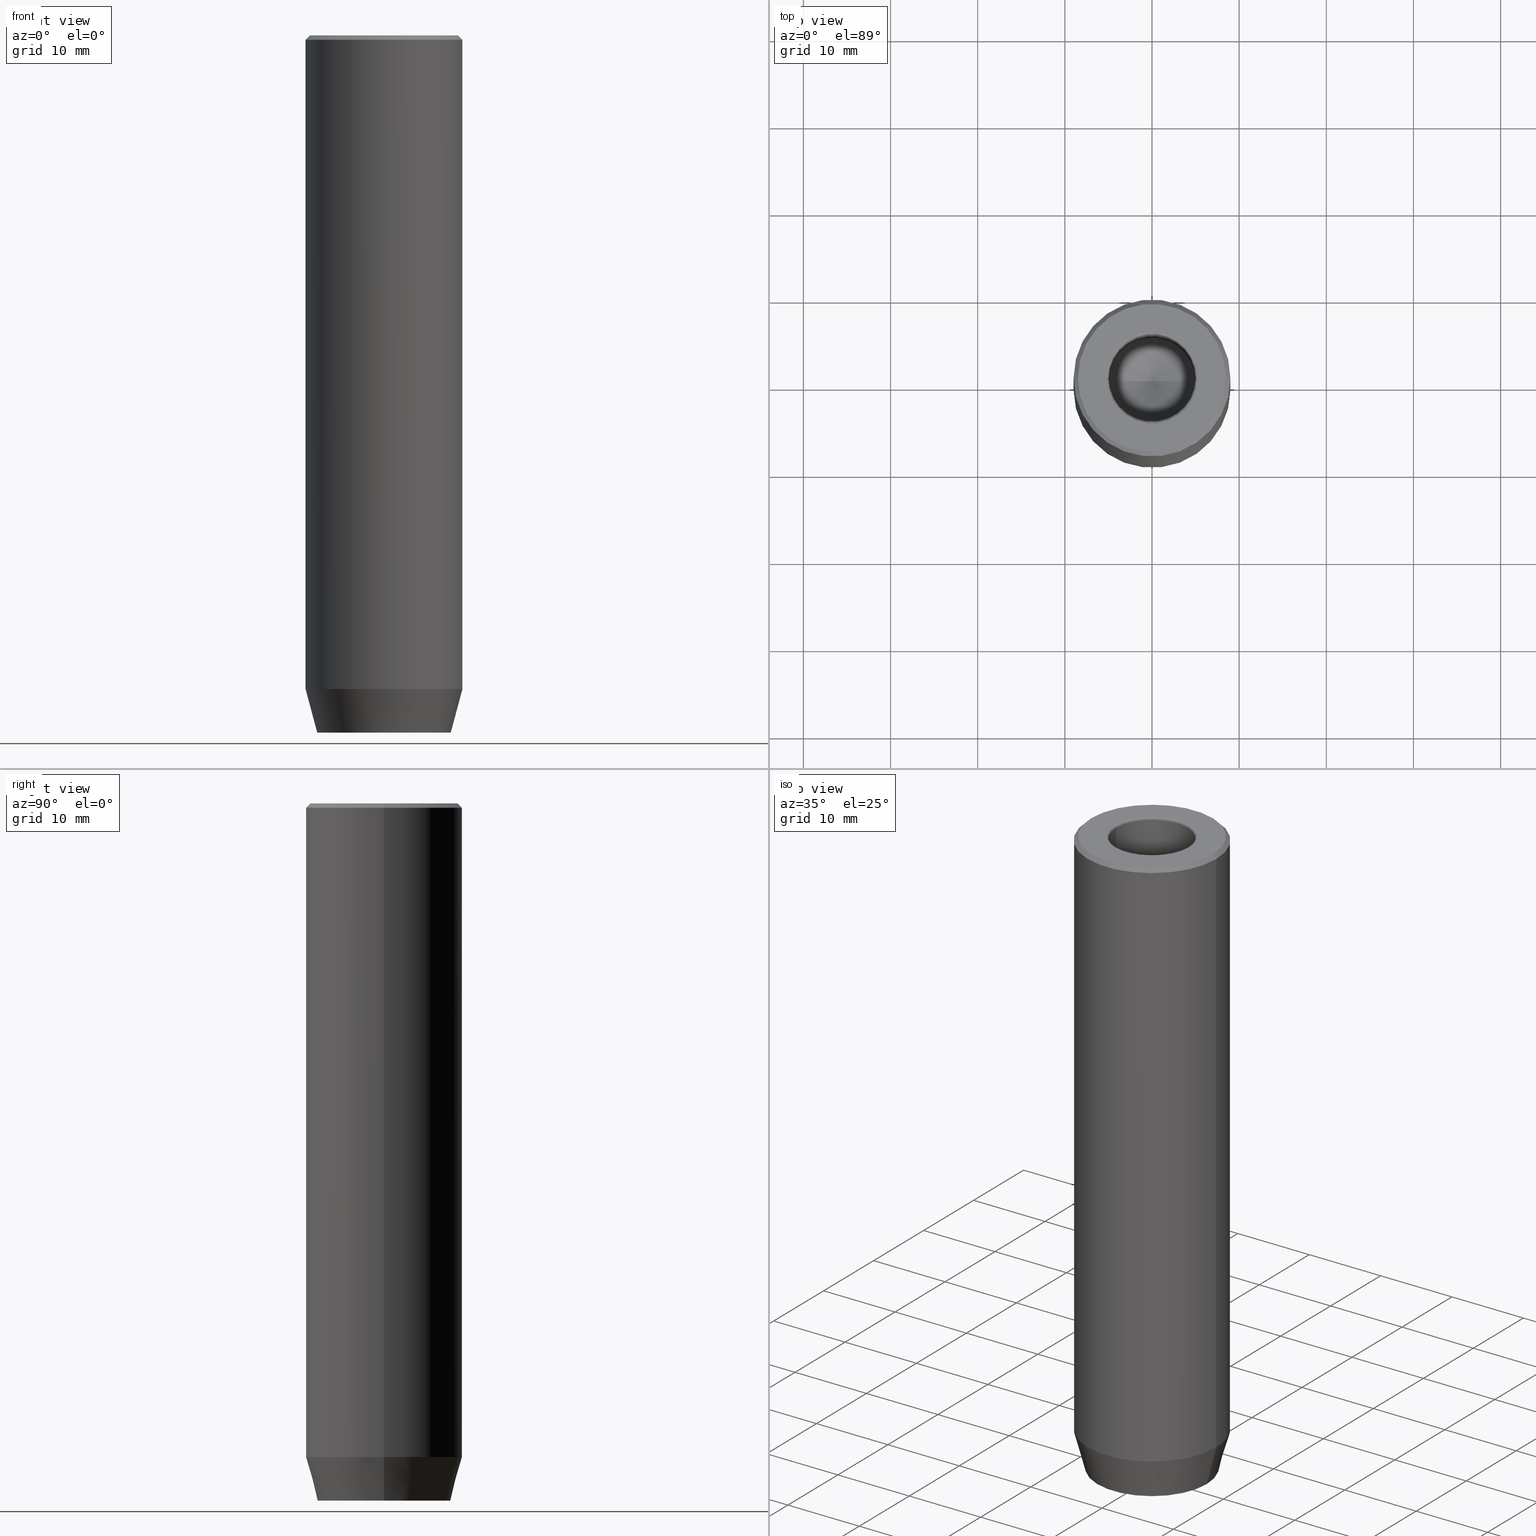
[diagram: canonical four-view strip — front | top / right | iso, engineering-drawing reading convention]
A machine part, canonical four-view strip (front | top / right | iso — engineering-drawing reading convention). The complete STEP part file that produces these views, byte-faithful:
ISO-10303-21;
HEADER;
FILE_DESCRIPTION (( 'STEP AP203' ),
    '1' );
FILE_NAME ('ad10.STEP',
    '2024-01-02T19:10:41',
    ( '' ),
    ( '' ),
    'SwSTEP 2.0',
    'SolidWorks 2019',
    '' );
FILE_SCHEMA (( 'CONFIG_CONTROL_DESIGN' ));
ENDSEC;

DATA;
#1 = FACE_OUTER_BOUND ( 'NONE', #139, .T. ) ;
#2 = APPROVAL_DATE_TIME ( #136, #612 ) ;
#3 = CARTESIAN_POINT ( 'NONE',  ( 0.000000000000000000, 0.000000000000000000, -80.00000000000000000 ) ) ;
#4 = ADVANCED_FACE ( 'NONE', ( #432 ), #207, .T. ) ;
#5 = AXIS2_PLACEMENT_3D ( 'NONE', #423, #173, #475 ) ;
#6 = CARTESIAN_POINT ( 'NONE',  ( -8.500000000000000000, 0.000000000000000000, 0.000000000000000000 ) ) ;
#7 = EDGE_CURVE ( 'NONE', #435, #127, #298, .T. ) ;
#8 = DIRECTION ( 'NONE',  ( 0.000000000000000000, 0.000000000000000000, -1.000000000000000000 ) ) ;
#9 = CARTESIAN_POINT ( 'NONE',  ( 4.999999999999995559, 0.000000000000000000, -20.00000000000000000 ) ) ;
#10 = CIRCLE ( 'NONE', #623, 9.000000000000000000 ) ;
#11 = FACE_BOUND ( 'NONE', #95, .T. ) ;
#12 = AXIS2_PLACEMENT_3D ( 'NONE', #222, #367, #148 ) ;
#13 = DIRECTION ( 'NONE',  ( 1.000000000000000000, 0.000000000000000000, 0.000000000000000000 ) ) ;
#14 = DIRECTION ( 'NONE',  ( -1.000000000000000000, 2.503857664561932376E-16, 0.000000000000000000 ) ) ;
#15 = CARTESIAN_POINT ( 'NONE',  ( 0.000000000000000000, 0.000000000000000000, 0.000000000000000000 ) ) ;
#16 = DIRECTION ( 'NONE',  ( -0.000000000000000000, -0.000000000000000000, 1.000000000000000000 ) ) ;
#17 = LINE ( 'NONE', #527, #257 ) ;
#18 = EDGE_CURVE ( 'NONE', #381, #92, #402, .T. ) ;
#19 = CARTESIAN_POINT ( 'NONE',  ( 0.000000000000000000, 0.000000000000000000, 0.000000000000000000 ) ) ;
#20 = DIRECTION ( 'NONE',  ( 1.000000000000000000, 0.000000000000000000, 0.000000000000000000 ) ) ;
#21 = DIRECTION ( 'NONE',  ( 0.8660254037844387076, 0.4999999999999997224, 0.000000000000000000 ) ) ;
#22 = AXIS2_PLACEMENT_3D ( 'NONE', #314, #281, #466 ) ;
#23 = ORIENTED_EDGE ( 'NONE', *, *, #210, .T. ) ;
#24 = DIRECTION ( 'NONE',  ( 0.4999999999999999445, -0.8660254037844387076, 0.000000000000000000 ) ) ;
#25 = DIRECTION ( 'NONE',  ( 1.000000000000000000, 0.000000000000000000, 0.000000000000000000 ) ) ;
#26 = ORIENTED_EDGE ( 'NONE', *, *, #530, .F. ) ;
#27 = CARTESIAN_POINT ( 'NONE',  ( 4.999999999999995559, 0.000000000000000000, -20.00000000000000000 ) ) ;
#28 = ORIENTED_EDGE ( 'NONE', *, *, #18, .T. ) ;
#29 = EDGE_CURVE ( 'NONE', #438, #575, #150, .T. ) ;
#30 = EDGE_LOOP ( 'NONE', ( #250, #285, #588, #482 ) ) ;
#31 = FACE_BOUND ( 'NONE', #237, .T. ) ;
#32 = ORIENTED_EDGE ( 'NONE', *, *, #507, .F. ) ;
#33 = ORIENTED_EDGE ( 'NONE', *, *, #349, .T. ) ;
#34 = DIRECTION ( 'NONE',  ( 0.000000000000000000, 0.000000000000000000, 1.000000000000000000 ) ) ;
#35 = EDGE_CURVE ( 'NONE', #381, #435, #213, .T. ) ;
#36 = CARTESIAN_POINT ( 'NONE',  ( 0.000000000000000000, -3.464101615137753942, -80.00000000000000000 ) ) ;
#37 = CC_DESIGN_APPROVAL ( #504, ( #50 ) ) ;
#38 = ORIENTED_EDGE ( 'NONE', *, *, #636, .T. ) ;
#39 = ORIENTED_EDGE ( 'NONE', *, *, #450, .F. ) ;
#40 = COORDINATED_UNIVERSAL_TIME_OFFSET ( 1, 0, .AHEAD. ) ;
#41 = DIRECTION ( 'NONE',  ( 0.000000000000000000, 0.000000000000000000, -1.000000000000000000 ) ) ;
#42 = ORIENTED_EDGE ( 'NONE', *, *, #620, .F. ) ;
#43 = MECHANICAL_CONTEXT ( 'NONE', #147, 'mechanical' ) ;
#44 = EDGE_CURVE ( 'NONE', #129, #635, #452, .T. ) ;
#45 = ORIENTED_EDGE ( 'NONE', *, *, #457, .F. ) ;
#46 = DIRECTION ( 'NONE',  ( 0.2588190451025211836, 0.000000000000000000, 0.9659258262890680902 ) ) ;
#47 = PERSON_AND_ORGANIZATION ( #545, #184 ) ;
#48 = VERTEX_POINT ( 'NONE', #251 ) ;
#49 = AXIS2_PLACEMENT_3D ( 'NONE', #335, #195, #389 ) ;
#50 = SECURITY_CLASSIFICATION ( '', '', #630 ) ;
#51 = CARTESIAN_POINT ( 'NONE',  ( 4.999999999999997335, 0.000000000000000000, 0.000000000000000000 ) ) ;
#52 = CALENDAR_DATE ( 2024, 2, 1 ) ;
#53 = ADVANCED_FACE ( 'NONE', ( #1 ), #206, .F. ) ;
#54 = CARTESIAN_POINT ( 'NONE',  ( 9.000000000000000000, 0.000000000000000000, 0.000000000000000000 ) ) ;
#55 = APPROVAL_ROLE ( '' ) ;
#56 = CIRCLE ( 'NONE', #208, 0.2999999999999999889 ) ;
#57 = UNCERTAINTY_MEASURE_WITH_UNIT (LENGTH_MEASURE( 1.000000000000000082E-05 ), #625, 'distance_accuracy_value', 'NONE');
#58 = EDGE_CURVE ( 'NONE', #200, #483, #302, .T. ) ;
#59 = DIRECTION ( 'NONE',  ( 2.503857664561932376E-16, 1.000000000000000000, 0.000000000000000000 ) ) ;
#60 = VECTOR ( 'NONE', #351, 1000.000000000000000 ) ;
#61 = VECTOR ( 'NONE', #358, 1000.000000000000000 ) ;
#62 = FACE_OUTER_BOUND ( 'NONE', #397, .T. ) ;
#63 = DIRECTION ( 'NONE',  ( -0.000000000000000000, -0.000000000000000000, -1.000000000000000000 ) ) ;
#64 = ADVANCED_FACE ( 'NONE', ( #307 ), #544, .F. ) ;
#65 = LINE ( 'NONE', #606, #308 ) ;
#66 = DIRECTION ( 'NONE',  ( -2.503857664561932376E-16, -1.000000000000000000, 0.000000000000000000 ) ) ;
#67 = DIRECTION ( 'NONE',  ( 1.000000000000000000, 0.000000000000000000, 0.000000000000000000 ) ) ;
#68 = CARTESIAN_POINT ( 'NONE',  ( 2.999999999999999112, -1.732050807568876971, -74.20000000000000284 ) ) ;
#69 = DIRECTION ( 'NONE',  ( -2.503857664561932376E-16, -1.000000000000000000, 0.000000000000000000 ) ) ;
#70 = CC_DESIGN_PERSON_AND_ORGANIZATION_ASSIGNMENT ( #442, #388, ( #479 ) ) ;
#71 = VERTEX_POINT ( 'NONE', #103 ) ;
#72 = CARTESIAN_POINT ( 'NONE',  ( 0.000000000000000000, 0.000000000000000000, 0.000000000000000000 ) ) ;
#73 = CARTESIAN_POINT ( 'NONE',  ( 0.000000000000000000, 0.000000000000000000, -0.2999999999999999889 ) ) ;
#74 = CARTESIAN_POINT ( 'NONE',  ( 0.000000000000000000, -3.464101615137753942, -74.20000000000000284 ) ) ;
#75 = ORIENTED_EDGE ( 'NONE', *, *, #598, .F. ) ;
#76 = CARTESIAN_POINT ( 'NONE',  ( -8.500000000000000000, 0.000000000000000000, 0.000000000000000000 ) ) ;
#77 = AXIS2_PLACEMENT_3D ( 'NONE', #212, #14, #66 ) ;
#78 = AXIS2_PLACEMENT_3D ( 'NONE', #578, #41, #243 ) ;
#79 = EDGE_LOOP ( 'NONE', ( #295, #181, #399 ) ) ;
#80 = EDGE_CURVE ( 'NONE', #127, #71, #495, .T. ) ;
#81 = EDGE_LOOP ( 'NONE', ( #241, #192, #449, #42 ) ) ;
#82 = DIRECTION ( 'NONE',  ( 1.000000000000000000, 0.000000000000000000, 0.000000000000000000 ) ) ;
#83 = ORIENTED_EDGE ( 'NONE', *, *, #7, .T. ) ;
#84 = EDGE_CURVE ( 'NONE', #515, #491, #254, .T. ) ;
#85 = ORIENTED_EDGE ( 'NONE', *, *, #58, .T. ) ;
#86 = CARTESIAN_POINT ( 'NONE',  ( 0.000000000000000000, 0.000000000000000000, -80.00000000000000000 ) ) ;
#87 = CARTESIAN_POINT ( 'NONE',  ( 2.999999999999999112, -1.732050807568876971, -74.20000000000000284 ) ) ;
#88 = ORIENTED_EDGE ( 'NONE', *, *, #238, .T. ) ;
#89 = APPLICATION_PROTOCOL_DEFINITION ( 'international standard', 'config_control_design', 1994, #505 ) ;
#90 = AXIS2_PLACEMENT_3D ( 'NONE', #456, #156, #458 ) ;
#91 = AXIS2_PLACEMENT_3D ( 'NONE', #549, #108, #310 ) ;
#92 = VERTEX_POINT ( 'NONE', #393 ) ;
#93 = EDGE_CURVE ( 'NONE', #246, #441, #447, .T. ) ;
#94 = CARTESIAN_POINT ( 'NONE',  ( -7.660254037844381969, 1.020146339021394469E-15, -80.00000000000000000 ) ) ;
#95 = EDGE_LOOP ( 'NONE', ( #332, #370 ) ) ;
#96 = PERSON_AND_ORGANIZATION_ROLE ( 'design_supplier' ) ;
#97 = EDGE_LOOP ( 'NONE', ( #169, #426, #45, #536 ) ) ;
#98 = DIRECTION ( 'NONE',  ( -0.000000000000000000, -0.000000000000000000, 1.000000000000000000 ) ) ;
#99 = PERSON_AND_ORGANIZATION_ROLE ( 'classification_officer' ) ;
#100 = EDGE_CURVE ( 'NONE', #583, #528, #201, .T. ) ;
#101 = CIRCLE ( 'NONE', #312, 9.000000000000000000 ) ;
#102 = CC_DESIGN_PERSON_AND_ORGANIZATION_ASSIGNMENT ( #639, #96, ( #455 ) ) ;
#103 = CARTESIAN_POINT ( 'NONE',  ( 9.000000000000000000, 0.000000000000000000, -0.5000000000000023315 ) ) ;
#104 = DIRECTION ( 'NONE',  ( 1.000000000000000000, 0.000000000000000000, 0.000000000000000000 ) ) ;
#105 = AXIS2_PLACEMENT_3D ( 'NONE', #591, #594, #341 ) ;
#106 = EDGE_CURVE ( 'NONE', #200, #521, #217, .T. ) ;
#107 = CYLINDRICAL_SURFACE ( 'NONE', #90, 4.999999999999997335 ) ;
#108 = DIRECTION ( 'NONE',  ( -0.000000000000000000, -0.000000000000000000, 1.000000000000000000 ) ) ;
#109 = CARTESIAN_POINT ( 'NONE',  ( -3.000000000000000000, 1.732050807568877859, -74.20000000000000284 ) ) ;
#110 = ADVANCED_FACE ( 'NONE', ( #220 ), #107, .F. ) ;
#111 = AXIS2_PLACEMENT_3D ( 'NONE', #116, #182, #126 ) ;
#112 = LINE ( 'NONE', #122, #356 ) ;
#113 = CARTESIAN_POINT ( 'NONE',  ( 9.000000000000000000, 0.000000000000000000, -75.00000000000000000 ) ) ;
#114 = DIRECTION ( 'NONE',  ( -1.000000000000000000, 0.000000000000000000, 0.000000000000000000 ) ) ;
#115 = CARTESIAN_POINT ( 'NONE',  ( 0.000000000000000000, 0.000000000000000000, -20.00000000000000000 ) ) ;
#116 = CARTESIAN_POINT ( 'NONE',  ( -1.499999999999999334, 2.598076211353316456, -74.20000000000000284 ) ) ;
#117 = ORIENTED_EDGE ( 'NONE', *, *, #260, .T. ) ;
#118 = ORIENTED_EDGE ( 'NONE', *, *, #7, .F. ) ;
#119 = LINE ( 'NONE', #331, #313 ) ;
#120 = ORIENTED_EDGE ( 'NONE', *, *, #601, .T. ) ;
#121 = VERTEX_POINT ( 'NONE', #554 ) ;
#122 = CARTESIAN_POINT ( 'NONE',  ( -9.000000000000000000, 1.102182119232617714E-15, 0.000000000000000000 ) ) ;
#123 = VECTOR ( 'NONE', #46, 1000.000000000000114 ) ;
#124 = CONICAL_SURFACE ( 'NONE', #239, 9.000000000000000000, 0.2617993877991499074 ) ;
#125 = ORIENTED_EDGE ( 'NONE', *, *, #405, .F. ) ;
#126 = DIRECTION ( 'NONE',  ( -0.8660254037844387076, -0.4999999999999997780, 0.000000000000000000 ) ) ;
#127 = VERTEX_POINT ( 'NONE', #113 ) ;
#128 = ORIENTED_EDGE ( 'NONE', *, *, #610, .T. ) ;
#129 = VERTEX_POINT ( 'NONE', #9 ) ;
#130 = APPROVAL_ROLE ( '' ) ;
#131 = MANIFOLD_SOLID_BREP ( 'Odebrat vysunut�m1', #180 ) ;
#132 = FACE_OUTER_BOUND ( 'NONE', #81, .T. ) ;
#133 = ORIENTED_EDGE ( 'NONE', *, *, #487, .T. ) ;
#134 = EDGE_CURVE ( 'NONE', #483, #48, #508, .T. ) ;
#135 = ORIENTED_EDGE ( 'NONE', *, *, #238, .F. ) ;
#136 = DATE_AND_TIME ( #581, #559 ) ;
#137 = AXIS2_PLACEMENT_3D ( 'NONE', #563, #525, #616 ) ;
#138 = DIRECTION ( 'NONE',  ( 0.8660254037844387076, -0.4999999999999997780, 0.000000000000000000 ) ) ;
#139 = EDGE_LOOP ( 'NONE', ( #203, #440, #576, #471 ) ) ;
#140 = CARTESIAN_POINT ( 'NONE',  ( 2.999999999999999556, -7.511572993685796142E-16, -74.20000000000000284 ) ) ;
#141 = COORDINATED_UNIVERSAL_TIME_OFFSET ( 1, 0, .AHEAD. ) ;
#142 = ORIENTED_EDGE ( 'NONE', *, *, #80, .F. ) ;
#143 = DIRECTION ( 'NONE',  ( -0.000000000000000000, -0.000000000000000000, 1.000000000000000000 ) ) ;
#144 = PERSON_AND_ORGANIZATION ( #545, #184 ) ;
#145 = EDGE_CURVE ( 'NONE', #491, #71, #165, .T. ) ;
#146 = ORIENTED_EDGE ( 'NONE', *, *, #636, .F. ) ;
#147 = APPLICATION_CONTEXT ( 'configuration controlled 3d designs of mechanical parts and assemblies' ) ;
#148 = DIRECTION ( 'NONE',  ( 1.000000000000000000, 0.000000000000000000, 0.000000000000000000 ) ) ;
#149 = VECTOR ( 'NONE', #170, 1000.000000000000114 ) ;
#150 = LINE ( 'NONE', #247, #236 ) ;
#151 = DATE_AND_TIME ( #500, #609 ) ;
#152 = DIRECTION ( 'NONE',  ( -0.7071067811865450192, 0.000000000000000000, -0.7071067811865500152 ) ) ;
#153 = ADVANCED_FACE ( 'NONE', ( #410 ), #357, .F. ) ;
#154 = DIRECTION ( 'NONE',  ( -0.000000000000000000, -0.000000000000000000, 1.000000000000000000 ) ) ;
#155 = CIRCLE ( 'NONE', #460, 4.999999999999995559 ) ;
#156 = DIRECTION ( 'NONE',  ( -0.000000000000000000, -0.000000000000000000, 1.000000000000000000 ) ) ;
#157 = CARTESIAN_POINT ( 'NONE',  ( -3.000000000000000888, -1.732050807568876527, -74.20000000000000284 ) ) ;
#158 = EDGE_CURVE ( 'NONE', #121, #566, #416, .T. ) ;
#159 = DIRECTION ( 'NONE',  ( 0.000000000000000000, 0.000000000000000000, -1.000000000000000000 ) ) ;
#160 = DIRECTION ( 'NONE',  ( -0.000000000000000000, -0.000000000000000000, 1.000000000000000000 ) ) ;
#161 = PLANE ( 'NONE',  #347 ) ;
#162 = CARTESIAN_POINT ( 'NONE',  ( 1.499999999999999112, 2.598076211353316012, -74.20000000000000284 ) ) ;
#163 = CC_DESIGN_PERSON_AND_ORGANIZATION_ASSIGNMENT ( #245, #289, ( #587 ) ) ;
#164 = LINE ( 'NONE', #265, #149 ) ;
#165 = CIRCLE ( 'NONE', #547, 9.000000000000000000 ) ;
#166 = AXIS2_PLACEMENT_3D ( 'NONE', #468, #218, #363 ) ;
#167 = AXIS2_PLACEMENT_3D ( 'NONE', #480, #160, #371 ) ;
#168 = CARTESIAN_POINT ( 'NONE',  ( -9.000000000000000000, 1.102182119232617714E-15, -0.5000000000000023315 ) ) ;
#169 = ORIENTED_EDGE ( 'NONE', *, *, #401, .T. ) ;
#170 = DIRECTION ( 'NONE',  ( -0.8660254037844387076, 0.4999999999999997780, 0.000000000000000000 ) ) ;
#171 = CARTESIAN_POINT ( 'NONE',  ( -4.999999999999995559, 6.123233995736761352E-16, -20.00000000000000000 ) ) ;
#172 = CARTESIAN_POINT ( 'NONE',  ( 0.000000000000000000, 0.000000000000000000, -20.00000000000000000 ) ) ;
#173 = DIRECTION ( 'NONE',  ( -0.000000000000000000, -0.000000000000000000, 1.000000000000000000 ) ) ;
#174 = CARTESIAN_POINT ( 'NONE',  ( 0.000000000000000000, 7.660254037844381969, -80.00000000000000000 ) ) ;
#175 = FACE_OUTER_BOUND ( 'NONE', #30, .T. ) ;
#176 = ADVANCED_FACE ( 'NONE', ( #11, #604 ), #161, .T. ) ;
#177 = ORIENTED_EDGE ( 'NONE', *, *, #210, .F. ) ;
#178 = CARTESIAN_POINT ( 'NONE',  ( 0.000000000000000000, 3.464101615137754830, -80.00000000000000000 ) ) ;
#179 = ORIENTED_EDGE ( 'NONE', *, *, #319, .F. ) ;
#180 = CLOSED_SHELL ( 'NONE', ( #4, #110, #256, #216, #211, #467, #502, #176, #520, #443, #462, #546, #189, #382, #565, #153, #342, #330, #64, #53, #375 ) ) ;
#181 = ORIENTED_EDGE ( 'NONE', *, *, #593, .T. ) ;
#182 = DIRECTION ( 'NONE',  ( -0.4999999999999998335, 0.8660254037844388186, 0.000000000000000000 ) ) ;
#183 = CIRCLE ( 'NONE', #541, 4.999999999999997335 ) ;
#184 = ORGANIZATION ( 'NEUR�EN�', 'NEUR�EN�', '' ) ;
#185 = ORIENTED_EDGE ( 'NONE', *, *, #283, .F. ) ;
#186 = ORIENTED_EDGE ( 'NONE', *, *, #80, .T. ) ;
#187 = ORIENTED_EDGE ( 'NONE', *, *, #349, .F. ) ;
#188 = APPLICATION_PROTOCOL_DEFINITION ( 'international standard', 'config_control_design', 1994, #147 ) ;
#189 = ADVANCED_FACE ( 'NONE', ( #407 ), #506, .F. ) ;
#190 = CARTESIAN_POINT ( 'NONE',  ( 1.499999999999999112, 2.598076211353316012, -80.00000000000000000 ) ) ;
#191 = DIRECTION ( 'NONE',  ( -0.000000000000000000, -0.000000000000000000, 1.000000000000000000 ) ) ;
#192 = ORIENTED_EDGE ( 'NONE', *, *, #408, .F. ) ;
#193 = ORIENTED_EDGE ( 'NONE', *, *, #271, .T. ) ;
#194 = APPROVAL_DATE_TIME ( #490, #409 ) ;
#195 = DIRECTION ( 'NONE',  ( 0.000000000000000000, 0.000000000000000000, -1.000000000000000000 ) ) ;
#196 = DIRECTION ( 'NONE',  ( 0.000000000000000000, 0.000000000000000000, -1.000000000000000000 ) ) ;
#197 = ORIENTED_EDGE ( 'NONE', *, *, #93, .F. ) ;
#198 = VECTOR ( 'NONE', #638, 999.9999999999998863 ) ;
#199 = VECTOR ( 'NONE', #69, 1000.000000000000000 ) ;
#200 = VERTEX_POINT ( 'NONE', #157 ) ;
#201 = LINE ( 'NONE', #398, #589 ) ;
#202 = CARTESIAN_POINT ( 'NONE',  ( -4.999999999999997335, 6.123233995736763324E-16, 0.000000000000000000 ) ) ;
#203 = ORIENTED_EDGE ( 'NONE', *, *, #417, .T. ) ;
#204 = DIRECTION ( 'NONE',  ( -0.000000000000000000, -0.000000000000000000, -1.000000000000000000 ) ) ;
#205 = DATE_AND_TIME ( #303, #424 ) ;
#206 = PLANE ( 'NONE',  #105 ) ;
#207 = TOROIDAL_SURFACE ( 'NONE', #346, 5.299999999999997158, 0.2999999999999999889 ) ;
#208 = AXIS2_PLACEMENT_3D ( 'NONE', #221, #419, #317 ) ;
#209 = APPROVAL_PERSON_ORGANIZATION ( #144, #612, #343 ) ;
#210 = EDGE_CURVE ( 'NONE', #92, #127, #276, .T. ) ;
#211 = ADVANCED_FACE ( 'NONE', ( #62 ), #124, .T. ) ;
#212 = CARTESIAN_POINT ( 'NONE',  ( -3.000000000000000444, 7.511572993685798115E-16, -74.20000000000000284 ) ) ;
#213 = CIRCLE ( 'NONE', #304, 7.660254037844381969 ) ;
#214 = AXIS2_PLACEMENT_3D ( 'NONE', #469, #16, #20 ) ;
#215 = VECTOR ( 'NONE', #138, 1000.000000000000114 ) ;
#216 = ADVANCED_FACE ( 'NONE', ( #464 ), #590, .T. ) ;
#217 = LINE ( 'NONE', #511, #311 ) ;
#218 = DIRECTION ( 'NONE',  ( -0.000000000000000000, -0.000000000000000000, 1.000000000000000000 ) ) ;
#219 = CARTESIAN_POINT ( 'NONE',  ( 0.000000000000000000, -3.464101615137753942, -74.20000000000000284 ) ) ;
#220 = FACE_OUTER_BOUND ( 'NONE', #570, .T. ) ;
#221 = CARTESIAN_POINT ( 'NONE',  ( 5.299999999999997158, 0.000000000000000000, -0.2999999999999999889 ) ) ;
#222 = CARTESIAN_POINT ( 'NONE',  ( 0.000000000000000000, 0.000000000000000000, -0.2999999999999999889 ) ) ;
#223 = CARTESIAN_POINT ( 'NONE',  ( 0.000000000000000000, 0.000000000000000000, -0.5000000000000023315 ) ) ;
#224 = DIRECTION ( 'NONE',  ( -0.000000000000000000, -0.000000000000000000, 1.000000000000000000 ) ) ;
#225 = AXIS2_PLACEMENT_3D ( 'NONE', #422, #269, #294 ) ;
#226 = CARTESIAN_POINT ( 'NONE',  ( -3.000000000000000888, -1.732050807568876527, -80.00000000000000000 ) ) ;
#227 = EDGE_LOOP ( 'NONE', ( #489, #429, #187, #125 ) ) ;
#228 = EDGE_CURVE ( 'NONE', #583, #121, #509, .T. ) ;
#229 = DIRECTION ( 'NONE',  ( 0.8660254037844385966, 0.4999999999999998890, 0.000000000000000000 ) ) ;
#230 = ORIENTED_EDGE ( 'NONE', *, *, #134, .F. ) ;
#231 = FACE_OUTER_BOUND ( 'NONE', #446, .T. ) ;
#232 = ORIENTED_EDGE ( 'NONE', *, *, #260, .F. ) ;
#233 = ORIENTED_EDGE ( 'NONE', *, *, #392, .T. ) ;
#234 = DIRECTION ( 'NONE',  ( 1.000000000000000000, 0.000000000000000000, 0.000000000000000000 ) ) ;
#235 = EDGE_LOOP ( 'NONE', ( #518, #279, #83, #177 ) ) ;
#236 = VECTOR ( 'NONE', #406, 999.9999999999998863 ) ;
#237 = EDGE_LOOP ( 'NONE', ( #32, #230, #533, #197, #524, #368 ) ) ;
#238 = EDGE_CURVE ( 'NONE', #71, #491, #101, .T. ) ;
#239 = AXIS2_PLACEMENT_3D ( 'NONE', #264, #605, #67 ) ;
#240 = FACE_OUTER_BOUND ( 'NONE', #235, .T. ) ;
#241 = ORIENTED_EDGE ( 'NONE', *, *, #493, .F. ) ;
#242 =( NAMED_UNIT ( * ) PLANE_ANGLE_UNIT ( ) SI_UNIT ( $, .RADIAN. ) );
#243 = DIRECTION ( 'NONE',  ( -1.000000000000000000, 0.000000000000000000, -0.000000000000000000 ) ) ;
#244 = ORIENTED_EDGE ( 'NONE', *, *, #44, .T. ) ;
#245 = PERSON_AND_ORGANIZATION ( #545, #184 ) ;
#246 = VERTEX_POINT ( 'NONE', #555 ) ;
#247 = CARTESIAN_POINT ( 'NONE',  ( 1.499999999999999556, -2.598076211353316012, -74.20000000000000284 ) ) ;
#248 = PERSON_AND_ORGANIZATION ( #545, #184 ) ;
#249 = CIRCLE ( 'NONE', #339, 5.299999999999997158 ) ;
#250 = ORIENTED_EDGE ( 'NONE', *, *, #93, .T. ) ;
#251 = CARTESIAN_POINT ( 'NONE',  ( -3.000000000000000000, 1.732050807568877859, -80.00000000000000000 ) ) ;
#252 = COORDINATED_UNIVERSAL_TIME_OFFSET ( 1, 0, .AHEAD. ) ;
#253 = DIRECTION ( 'NONE',  ( -0.2588190451025211836, 3.169619151431770488E-17, 0.9659258262890680902 ) ) ;
#254 = LINE ( 'NONE', #6, #436 ) ;
#255 = SHAPE_DEFINITION_REPRESENTATION ( #385, #631 ) ;
#256 = ADVANCED_FACE ( 'NONE', ( #418 ), #326, .F. ) ;
#257 = VECTOR ( 'NONE', #613, 1000.000000000000000 ) ;
#258 = APPROVAL_PERSON_ORGANIZATION ( #577, #409, #130 ) ;
#259 = DIRECTION ( 'NONE',  ( -0.000000000000000000, -0.000000000000000000, -1.000000000000000000 ) ) ;
#260 = EDGE_CURVE ( 'NONE', #521, #48, #414, .T. ) ;
#261 = CARTESIAN_POINT ( 'NONE',  ( 3.000000000000000000, 1.732050807568877193, -74.20000000000000284 ) ) ;
#262 = AXIS2_PLACEMENT_3D ( 'NONE', #115, #428, #25 ) ;
#263 = LOCAL_TIME ( 20, 10, 41.00000000000000000, #488 ) ;
#264 = CARTESIAN_POINT ( 'NONE',  ( 0.000000000000000000, 0.000000000000000000, -75.00000000000000000 ) ) ;
#265 = CARTESIAN_POINT ( 'NONE',  ( -1.499999999999999112, -2.598076211353316012, -74.20000000000000284 ) ) ;
#266 = DIRECTION ( 'NONE',  ( -0.000000000000000000, -0.000000000000000000, 1.000000000000000000 ) ) ;
#267 = DIRECTION ( 'NONE',  ( -0.000000000000000000, -0.000000000000000000, 1.000000000000000000 ) ) ;
#268 = DIRECTION ( 'NONE',  ( 1.000000000000000000, 0.000000000000000000, 0.000000000000000000 ) ) ;
#269 = DIRECTION ( 'NONE',  ( -0.4999999999999998335, -0.8660254037844387076, 0.000000000000000000 ) ) ;
#270 = CARTESIAN_POINT ( 'NONE',  ( -4.999999999999997335, 6.123233995736763324E-16, -0.2999999999999999889 ) ) ;
#271 = EDGE_CURVE ( 'NONE', #568, #515, #622, .T. ) ;
#272 = ORIENTED_EDGE ( 'NONE', *, *, #593, .F. ) ;
#273 = DIRECTION ( 'NONE',  ( 0.000000000000000000, 0.000000000000000000, -1.000000000000000000 ) ) ;
#274 = DIRECTION ( 'NONE',  ( 1.000000000000000000, 0.000000000000000000, 0.000000000000000000 ) ) ;
#275 = CARTESIAN_POINT ( 'NONE',  ( -5.299999999999997158, 6.490628035480969952E-16, 0.000000000000000000 ) ) ;
#276 = CIRCLE ( 'NONE', #91, 9.000000000000000000 ) ;
#277 = AXIS2_PLACEMENT_3D ( 'NONE', #633, #34, #299 ) ;
#278 = DIRECTION ( 'NONE',  ( 0.8571673007021120005, 0.000000000000000000, 0.5150380749100547106 ) ) ;
#279 = ORIENTED_EDGE ( 'NONE', *, *, #35, .T. ) ;
#280 = ORIENTED_EDGE ( 'NONE', *, *, #84, .F. ) ;
#281 = DIRECTION ( 'NONE',  ( -0.000000000000000000, -0.000000000000000000, 1.000000000000000000 ) ) ;
#282 = EDGE_LOOP ( 'NONE', ( #377, #232, #580, #85 ) ) ;
#283 = EDGE_CURVE ( 'NONE', #568, #71, #560, .T. ) ;
#284 = EDGE_LOOP ( 'NONE', ( #272, #133, #288 ) ) ;
#285 = ORIENTED_EDGE ( 'NONE', *, *, #300, .F. ) ;
#286 = ORIENTED_EDGE ( 'NONE', *, *, #228, .T. ) ;
#287 = VECTOR ( 'NONE', #253, 1000.000000000000114 ) ;
#288 = ORIENTED_EDGE ( 'NONE', *, *, #450, .T. ) ;
#289 = PERSON_AND_ORGANIZATION_ROLE ( 'design_owner' ) ;
#290 = CC_DESIGN_PERSON_AND_ORGANIZATION_ASSIGNMENT ( #47, #538, ( #455 ) ) ;
#291 = CONICAL_SURFACE ( 'NONE', #454, 8.500000000000000000, 0.7853981633974447263 ) ;
#292 = APPROVAL_PERSON_ORGANIZATION ( #534, #504, #55 ) ;
#293 = LINE ( 'NONE', #190, #215 ) ;
#294 = DIRECTION ( 'NONE',  ( 0.8660254037844387076, -0.4999999999999998335, 0.000000000000000000 ) ) ;
#295 = ORIENTED_EDGE ( 'NONE', *, *, #487, .F. ) ;
#296 = LINE ( 'NONE', #202, #396 ) ;
#297 = ORIENTED_EDGE ( 'NONE', *, *, #574, .F. ) ;
#298 = LINE ( 'NONE', #586, #123 ) ;
#299 = DIRECTION ( 'NONE',  ( 1.000000000000000000, 0.000000000000000000, 0.000000000000000000 ) ) ;
#300 = EDGE_CURVE ( 'NONE', #575, #441, #614, .T. ) ;
#301 = EDGE_LOOP ( 'NONE', ( #619, #476, #297, #117 ) ) ;
#302 = LINE ( 'NONE', #350, #557 ) ;
#303 = CALENDAR_DATE ( 2024, 2, 1 ) ;
#304 = AXIS2_PLACEMENT_3D ( 'NONE', #3, #143, #451 ) ;
#305 = TOROIDAL_SURFACE ( 'NONE', #572, 5.299999999999997158, 0.2999999999999999889 ) ;
#306 = EDGE_CURVE ( 'NONE', #129, #391, #155, .T. ) ;
#307 = FACE_OUTER_BOUND ( 'NONE', #379, .T. ) ;
#308 = VECTOR ( 'NONE', #519, 1000.000000000000000 ) ;
#309 = AXIS2_PLACEMENT_3D ( 'NONE', #86, #463, #13 ) ;
#310 = DIRECTION ( 'NONE',  ( 1.000000000000000000, 0.000000000000000000, 0.000000000000000000 ) ) ;
#311 = VECTOR ( 'NONE', #558, 1000.000000000000000 ) ;
#312 = AXIS2_PLACEMENT_3D ( 'NONE', #223, #359, #268 ) ;
#313 = VECTOR ( 'NONE', #514, 1000.000000000000114 ) ;
#314 = CARTESIAN_POINT ( 'NONE',  ( 0.000000000000000000, 0.000000000000000000, 0.000000000000000000 ) ) ;
#315 = CARTESIAN_POINT ( 'NONE',  ( 0.000000000000000000, 0.000000000000000000, 0.000000000000000000 ) ) ;
#316 = DIRECTION ( 'NONE',  ( 1.000000000000000000, 0.000000000000000000, 0.000000000000000000 ) ) ;
#317 = DIRECTION ( 'NONE',  ( 0.000000000000000000, 0.000000000000000000, -1.000000000000000000 ) ) ;
#318 = PLANE ( 'NONE',  #225 ) ;
#319 = EDGE_CURVE ( 'NONE', #438, #246, #322, .T. ) ;
#320 = PLANE ( 'NONE',  #503 ) ;
#321 = EDGE_LOOP ( 'NONE', ( #146, #608, #244, #33 ) ) ;
#322 = LINE ( 'NONE', #68, #523 ) ;
#323 = EDGE_LOOP ( 'NONE', ( #387, #481, #478, #280 ) ) ;
#324 = LINE ( 'NONE', #27, #550 ) ;
#325 = ORIENTED_EDGE ( 'NONE', *, *, #35, .F. ) ;
#326 = CONICAL_SURFACE ( 'NONE', #166, 4.999999999999995559, 1.029744258676653867 ) ;
#327 = ORIENTED_EDGE ( 'NONE', *, *, #530, .T. ) ;
#328 = CARTESIAN_POINT ( 'NONE',  ( 2.999999999999999556, -7.511572993685796142E-16, -80.00000000000000000 ) ) ;
#329 = VERTEX_POINT ( 'NONE', #275 ) ;
#330 = ADVANCED_FACE ( 'NONE', ( #175 ), #561, .F. ) ;
#331 = CARTESIAN_POINT ( 'NONE',  ( -1.499999999999999334, 2.598076211353316456, -74.20000000000000284 ) ) ;
#332 = ORIENTED_EDGE ( 'NONE', *, *, #408, .T. ) ;
#333 = ORIENTED_EDGE ( 'NONE', *, *, #106, .T. ) ;
#334 = DATE_AND_TIME ( #394, #461 ) ;
#335 = CARTESIAN_POINT ( 'NONE',  ( 0.000000000000000000, 0.000000000000000000, 0.000000000000000000 ) ) ;
#336 = ORIENTED_EDGE ( 'NONE', *, *, #601, .F. ) ;
#337 = ORIENTED_EDGE ( 'NONE', *, *, #29, .T. ) ;
#338 = DATE_TIME_ROLE ( 'classification_date' ) ;
#339 = AXIS2_PLACEMENT_3D ( 'NONE', #535, #196, #627 ) ;
#340 = ORIENTED_EDGE ( 'NONE', *, *, #620, .T. ) ;
#341 = DIRECTION ( 'NONE',  ( -0.8660254037844387076, 0.4999999999999998335, 0.000000000000000000 ) ) ;
#342 = ADVANCED_FACE ( 'NONE', ( #366 ), #318, .F. ) ;
#343 = APPROVAL_ROLE ( '' ) ;
#344 = APPROVAL_STATUS ( 'not_yet_approved' ) ;
#345 = DIRECTION ( 'NONE',  ( -0.000000000000000000, -0.000000000000000000, 1.000000000000000000 ) ) ;
#346 = AXIS2_PLACEMENT_3D ( 'NONE', #542, #537, #539 ) ;
#347 = AXIS2_PLACEMENT_3D ( 'NONE', #315, #600, #104 ) ;
#348 = CC_DESIGN_SECURITY_CLASSIFICATION ( #50, ( #455 ) ) ;
#349 = EDGE_CURVE ( 'NONE', #635, #484, #183, .T. ) ;
#350 = CARTESIAN_POINT ( 'NONE',  ( -3.000000000000000888, -1.732050807568876527, -74.20000000000000284 ) ) ;
#351 = DIRECTION ( 'NONE',  ( -0.000000000000000000, -0.000000000000000000, 1.000000000000000000 ) ) ;
#352 = DIRECTION ( 'NONE',  ( 1.000000000000000000, 0.000000000000000000, 0.000000000000000000 ) ) ;
#353 = VECTOR ( 'NONE', #98, 1000.000000000000000 ) ;
#354 = DESIGN_CONTEXT ( 'detailed design', #505, 'design' ) ;
#355 = VECTOR ( 'NONE', #513, 1000.000000000000114 ) ;
#356 = VECTOR ( 'NONE', #267, 1000.000000000000000 ) ;
#357 = PLANE ( 'NONE',  #77 ) ;
#358 = DIRECTION ( 'NONE',  ( -0.000000000000000000, -0.000000000000000000, -1.000000000000000000 ) ) ;
#359 = DIRECTION ( 'NONE',  ( 0.000000000000000000, 0.000000000000000000, -1.000000000000000000 ) ) ;
#360 = CARTESIAN_POINT ( 'NONE',  ( 3.000000000000000000, 1.732050807568877193, -80.00000000000000000 ) ) ;
#361 = DIRECTION ( 'NONE',  ( 1.000000000000000000, 0.000000000000000000, 0.000000000000000000 ) ) ;
#362 = VECTOR ( 'NONE', #59, 1000.000000000000000 ) ;
#363 = DIRECTION ( 'NONE',  ( 1.000000000000000000, 0.000000000000000000, 0.000000000000000000 ) ) ;
#364 = EDGE_CURVE ( 'NONE', #329, #444, #249, .T. ) ;
#365 = CONICAL_SURFACE ( 'NONE', #5, 9.000000000000000000, 0.2617993877991499074 ) ;
#366 = FACE_OUTER_BOUND ( 'NONE', #97, .T. ) ;
#367 = DIRECTION ( 'NONE',  ( -0.000000000000000000, -0.000000000000000000, 1.000000000000000000 ) ) ;
#368 = ORIENTED_EDGE ( 'NONE', *, *, #417, .F. ) ;
#369 = LINE ( 'NONE', #564, #355 ) ;
#370 = ORIENTED_EDGE ( 'NONE', *, *, #364, .T. ) ;
#371 = DIRECTION ( 'NONE',  ( 1.000000000000000000, 0.000000000000000000, 0.000000000000000000 ) ) ;
#372 = EDGE_LOOP ( 'NONE', ( #233, #193 ) ) ;
#373 = DIRECTION ( 'NONE',  ( 0.7071067811865450192, 8.659560562354902043E-17, -0.7071067811865500152 ) ) ;
#374 = VERTEX_POINT ( 'NONE', #390 ) ;
#375 = ADVANCED_FACE ( 'NONE', ( #386 ), #634, .T. ) ;
#376 = FACE_OUTER_BOUND ( 'NONE', #301, .T. ) ;
#377 = ORIENTED_EDGE ( 'NONE', *, *, #134, .T. ) ;
#378 = CIRCLE ( 'NONE', #262, 4.999999999999995559 ) ;
#379 = EDGE_LOOP ( 'NONE', ( #624, #179, #26, #617 ) ) ;
#380 = CARTESIAN_POINT ( 'NONE',  ( 8.500000000000000000, 1.071565949253933927E-15, 0.000000000000000000 ) ) ;
#381 = VERTEX_POINT ( 'NONE', #94 ) ;
#382 = ADVANCED_FACE ( 'NONE', ( #132 ), #305, .T. ) ;
#383 = ORIENTED_EDGE ( 'NONE', *, *, #610, .F. ) ;
#384 = EDGE_LOOP ( 'NONE', ( #120, #128, #526, #142 ) ) ;
#385 = PRODUCT_DEFINITION_SHAPE ( 'NONE', 'NONE',  #479 ) ;
#386 = FACE_OUTER_BOUND ( 'NONE', #585, .T. ) ;
#387 = ORIENTED_EDGE ( 'NONE', *, *, #271, .F. ) ;
#388 = PERSON_AND_ORGANIZATION_ROLE ( 'creator' ) ;
#389 = DIRECTION ( 'NONE',  ( 1.000000000000000000, 0.000000000000000000, 0.000000000000000000 ) ) ;
#390 = CARTESIAN_POINT ( 'NONE',  ( -5.477553227319343599E-15, 0.000000000000000000, -23.00430309513780003 ) ) ;
#391 = VERTEX_POINT ( 'NONE', #171 ) ;
#392 = EDGE_CURVE ( 'NONE', #515, #568, #403, .T. ) ;
#393 = CARTESIAN_POINT ( 'NONE',  ( -9.000000000000000000, 1.102182119232617714E-15, -75.00000000000000000 ) ) ;
#394 = CALENDAR_DATE ( 2024, 2, 1 ) ;
#395 = VECTOR ( 'NONE', #427, 1000.000000000000000 ) ;
#396 = VECTOR ( 'NONE', #345, 1000.000000000000000 ) ;
#397 = EDGE_LOOP ( 'NONE', ( #431, #28, #336, #118 ) ) ;
#398 = CARTESIAN_POINT ( 'NONE',  ( 0.000000000000000000, 3.464101615137753054, -74.20000000000000284 ) ) ;
#399 = ORIENTED_EDGE ( 'NONE', *, *, #306, .T. ) ;
#400 = DIRECTION ( 'NONE',  ( 1.000000000000000000, -2.503857664561932376E-16, 0.000000000000000000 ) ) ;
#401 = EDGE_CURVE ( 'NONE', #441, #483, #369, .T. ) ;
#402 = LINE ( 'NONE', #499, #287 ) ;
#403 = CIRCLE ( 'NONE', #214, 8.500000000000000000 ) ;
#404 = CIRCLE ( 'NONE', #12, 4.999999999999997335 ) ;
#405 = EDGE_CURVE ( 'NONE', #444, #635, #56, .T. ) ;
#406 = DIRECTION ( 'NONE',  ( -0.8660254037844387076, -0.4999999999999999445, 0.000000000000000000 ) ) ;
#407 = FACE_OUTER_BOUND ( 'NONE', #321, .T. ) ;
#408 = EDGE_CURVE ( 'NONE', #444, #329, #437, .T. ) ;
#409 = APPROVAL ( #540, 'NEUR�EN�' ) ;
#410 = FACE_OUTER_BOUND ( 'NONE', #282, .T. ) ;
#411 = VECTOR ( 'NONE', #373, 1000.000000000000000 ) ;
#412 =( GEOMETRIC_REPRESENTATION_CONTEXT ( 3 ) GLOBAL_UNCERTAINTY_ASSIGNED_CONTEXT ( ( #57 ) ) GLOBAL_UNIT_ASSIGNED_CONTEXT ( ( #625, #242, #439 ) ) REPRESENTATION_CONTEXT ( 'NONE', 'WORKASPACE' ) );
#413 = CARTESIAN_POINT ( 'NONE',  ( 0.000000000000000000, 0.000000000000000000, -0.5000000000000023315 ) ) ;
#414 = LINE ( 'NONE', #109, #571 ) ;
#415 = CARTESIAN_POINT ( 'NONE',  ( 0.000000000000000000, 3.464101615137753054, -74.20000000000000284 ) ) ;
#416 = LINE ( 'NONE', #261, #61 ) ;
#417 = EDGE_CURVE ( 'NONE', #528, #566, #293, .T. ) ;
#418 = FACE_OUTER_BOUND ( 'NONE', #284, .T. ) ;
#419 = DIRECTION ( 'NONE',  ( 0.000000000000000000, -1.000000000000000000, 0.000000000000000000 ) ) ;
#420 = DIRECTION ( 'NONE',  ( -1.000000000000000000, 0.000000000000000000, -0.000000000000000000 ) ) ;
#421 = CIRCLE ( 'NONE', #137, 0.2999999999999999334 ) ;
#422 = CARTESIAN_POINT ( 'NONE',  ( -1.499999999999999112, -2.598076211353316012, -74.20000000000000284 ) ) ;
#423 = CARTESIAN_POINT ( 'NONE',  ( 0.000000000000000000, 0.000000000000000000, -75.00000000000000000 ) ) ;
#424 = LOCAL_TIME ( 20, 10, 41.00000000000000000, #252 ) ;
#425 = CYLINDRICAL_SURFACE ( 'NONE', #22, 9.000000000000000000 ) ;
#426 = ORIENTED_EDGE ( 'NONE', *, *, #58, .F. ) ;
#427 = DIRECTION ( 'NONE',  ( -0.000000000000000000, -0.000000000000000000, -1.000000000000000000 ) ) ;
#428 = DIRECTION ( 'NONE',  ( -0.000000000000000000, -0.000000000000000000, 1.000000000000000000 ) ) ;
#429 = ORIENTED_EDGE ( 'NONE', *, *, #493, .T. ) ;
#430 = DIRECTION ( 'NONE',  ( -0.000000000000000000, -0.000000000000000000, 1.000000000000000000 ) ) ;
#431 = ORIENTED_EDGE ( 'NONE', *, *, #598, .T. ) ;
#432 = FACE_OUTER_BOUND ( 'NONE', #227, .T. ) ;
#433 = CARTESIAN_POINT ( 'NONE',  ( -3.000000000000000000, 1.732050807568877859, -74.20000000000000284 ) ) ;
#434 = CC_DESIGN_DATE_AND_TIME_ASSIGNMENT ( #205, #338, ( #50 ) ) ;
#435 = VERTEX_POINT ( 'NONE', #529 ) ;
#436 = VECTOR ( 'NONE', #152, 1000.000000000000000 ) ;
#437 = CIRCLE ( 'NONE', #49, 5.299999999999997158 ) ;
#438 = VERTEX_POINT ( 'NONE', #87 ) ;
#439 =( NAMED_UNIT ( * ) SI_UNIT ( $, .STERADIAN. ) SOLID_ANGLE_UNIT ( ) );
#440 = ORIENTED_EDGE ( 'NONE', *, *, #158, .F. ) ;
#441 = VERTEX_POINT ( 'NONE', #36 ) ;
#442 = PERSON_AND_ORGANIZATION ( #545, #184 ) ;
#443 = ADVANCED_FACE ( 'NONE', ( #240 ), #365, .T. ) ;
#444 = VERTEX_POINT ( 'NONE', #562 ) ;
#445 = CARTESIAN_POINT ( 'NONE',  ( 0.000000000000000000, 0.000000000000000000, -0.2999999999999999889 ) ) ;
#446 = EDGE_LOOP ( 'NONE', ( #383, #23, #186, #88 ) ) ;
#447 = LINE ( 'NONE', #584, #198 ) ;
#448 = AXIS2_PLACEMENT_3D ( 'NONE', #15, #266, #316 ) ;
#449 = ORIENTED_EDGE ( 'NONE', *, *, #405, .T. ) ;
#450 = EDGE_CURVE ( 'NONE', #391, #129, #378, .T. ) ;
#451 = DIRECTION ( 'NONE',  ( 1.000000000000000000, 0.000000000000000000, 0.000000000000000000 ) ) ;
#452 = LINE ( 'NONE', #51, #353 ) ;
#453 = APPROVAL_DATE_TIME ( #151, #504 ) ;
#454 = AXIS2_PLACEMENT_3D ( 'NONE', #72, #273, #472 ) ;
#455 = PRODUCT_DEFINITION_FORMATION_WITH_SPECIFIED_SOURCE ( 'LIBOVOLN�', '', #587, .NOT_KNOWN. ) ;
#456 = CARTESIAN_POINT ( 'NONE',  ( 0.000000000000000000, 0.000000000000000000, 0.000000000000000000 ) ) ;
#457 = EDGE_CURVE ( 'NONE', #575, #200, #164, .T. ) ;
#458 = DIRECTION ( 'NONE',  ( 1.000000000000000000, 0.000000000000000000, 0.000000000000000000 ) ) ;
#459 = AXIS2_PLACEMENT_3D ( 'NONE', #140, #400, #501 ) ;
#460 = AXIS2_PLACEMENT_3D ( 'NONE', #172, #224, #517 ) ;
#461 = LOCAL_TIME ( 20, 10, 41.00000000000000000, #141 ) ;
#462 = ADVANCED_FACE ( 'NONE', ( #516 ), #291, .T. ) ;
#463 = DIRECTION ( 'NONE',  ( -0.000000000000000000, -0.000000000000000000, 1.000000000000000000 ) ) ;
#464 = FACE_OUTER_BOUND ( 'NONE', #323, .T. ) ;
#465 = DIRECTION ( 'NONE',  ( -0.000000000000000000, -0.000000000000000000, 1.000000000000000000 ) ) ;
#466 = DIRECTION ( 'NONE',  ( 1.000000000000000000, 0.000000000000000000, 0.000000000000000000 ) ) ;
#467 = ADVANCED_FACE ( 'NONE', ( #532 ), #498, .T. ) ;
#468 = CARTESIAN_POINT ( 'NONE',  ( 0.000000000000000000, 0.000000000000000000, -20.00000000000000000 ) ) ;
#469 = CARTESIAN_POINT ( 'NONE',  ( 0.000000000000000000, 0.000000000000000000, 0.000000000000000000 ) ) ;
#470 = LINE ( 'NONE', #477, #473 ) ;
#471 = ORIENTED_EDGE ( 'NONE', *, *, #100, .T. ) ;
#472 = DIRECTION ( 'NONE',  ( -1.000000000000000000, 0.000000000000000000, 0.000000000000000000 ) ) ;
#473 = VECTOR ( 'NONE', #21, 1000.000000000000114 ) ;
#474 = CARTESIAN_POINT ( 'NONE',  ( 1.499999999999999556, -2.598076211353316012, -74.20000000000000284 ) ) ;
#475 = DIRECTION ( 'NONE',  ( 1.000000000000000000, 0.000000000000000000, 0.000000000000000000 ) ) ;
#476 = ORIENTED_EDGE ( 'NONE', *, *, #100, .F. ) ;
#477 = CARTESIAN_POINT ( 'NONE',  ( -1.499999999999999334, 2.598076211353316456, -80.00000000000000000 ) ) ;
#478 = ORIENTED_EDGE ( 'NONE', *, *, #145, .F. ) ;
#479 = PRODUCT_DEFINITION ( 'NEZN�M�', '', #455, #354 ) ;
#480 = CARTESIAN_POINT ( 'NONE',  ( 0.000000000000000000, 0.000000000000000000, -20.00000000000000000 ) ) ;
#481 = ORIENTED_EDGE ( 'NONE', *, *, #283, .T. ) ;
#482 = ORIENTED_EDGE ( 'NONE', *, *, #319, .T. ) ;
#483 = VERTEX_POINT ( 'NONE', #226 ) ;
#484 = VERTEX_POINT ( 'NONE', #270 ) ;
#485 = AXIS2_PLACEMENT_3D ( 'NONE', #597, #154, #352 ) ;
#486 = CC_DESIGN_APPROVAL ( #409, ( #479 ) ) ;
#487 = EDGE_CURVE ( 'NONE', #374, #391, #17, .T. ) ;
#488 = COORDINATED_UNIVERSAL_TIME_OFFSET ( 1, 0, .AHEAD. ) ;
#489 = ORIENTED_EDGE ( 'NONE', *, *, #364, .F. ) ;
#490 = DATE_AND_TIME ( #52, #263 ) ;
#491 = VERTEX_POINT ( 'NONE', #168 ) ;
#492 = DATE_TIME_ROLE ( 'creation_date' ) ;
#493 = EDGE_CURVE ( 'NONE', #329, #484, #421, .T. ) ;
#494 = ORIENTED_EDGE ( 'NONE', *, *, #84, .T. ) ;
#495 = LINE ( 'NONE', #54, #60 ) ;
#496 = CARTESIAN_POINT ( 'NONE',  ( 4.999999999999997335, 0.000000000000000000, -0.2999999999999999889 ) ) ;
#497 = AXIS2_PLACEMENT_3D ( 'NONE', #19, #159, #114 ) ;
#498 = CYLINDRICAL_SURFACE ( 'NONE', #607, 9.000000000000000000 ) ;
#499 = CARTESIAN_POINT ( 'NONE',  ( -9.000000000000000000, 1.102182119232617714E-15, -75.00000000000000000 ) ) ;
#500 = CALENDAR_DATE ( 2024, 2, 1 ) ;
#501 = DIRECTION ( 'NONE',  ( 2.503857664561932376E-16, 1.000000000000000000, 0.000000000000000000 ) ) ;
#502 = ADVANCED_FACE ( 'NONE', ( #31, #603 ), #320, .T. ) ;
#503 = AXIS2_PLACEMENT_3D ( 'NONE', #174, #510, #420 ) ;
#504 = APPROVAL ( #551, 'NEUR�EN�' ) ;
#505 = APPLICATION_CONTEXT ( 'configuration controlled 3d designs of mechanical parts and assemblies' ) ;
#506 = CYLINDRICAL_SURFACE ( 'NONE', #485, 4.999999999999997335 ) ;
#507 = EDGE_CURVE ( 'NONE', #48, #528, #470, .T. ) ;
#508 = LINE ( 'NONE', #552, #362 ) ;
#509 = LINE ( 'NONE', #162, #548 ) ;
#510 = DIRECTION ( 'NONE',  ( 0.000000000000000000, 0.000000000000000000, -1.000000000000000000 ) ) ;
#511 = CARTESIAN_POINT ( 'NONE',  ( -3.000000000000000444, 7.511572993685798115E-16, -74.20000000000000284 ) ) ;
#512 = CARTESIAN_POINT ( 'NONE',  ( 8.500000000000000000, 1.040949779275250140E-15, 0.000000000000000000 ) ) ;
#513 = DIRECTION ( 'NONE',  ( -0.8660254037844387076, 0.4999999999999997780, 0.000000000000000000 ) ) ;
#514 = DIRECTION ( 'NONE',  ( 0.8660254037844387076, 0.4999999999999997224, 0.000000000000000000 ) ) ;
#515 = VERTEX_POINT ( 'NONE', #76 ) ;
#516 = FACE_OUTER_BOUND ( 'NONE', #628, .T. ) ;
#517 = DIRECTION ( 'NONE',  ( 1.000000000000000000, 0.000000000000000000, 0.000000000000000000 ) ) ;
#518 = ORIENTED_EDGE ( 'NONE', *, *, #18, .F. ) ;
#519 = DIRECTION ( 'NONE',  ( -2.503857664561932376E-16, -1.000000000000000000, 0.000000000000000000 ) ) ;
#520 = ADVANCED_FACE ( 'NONE', ( #231 ), #425, .T. ) ;
#521 = VERTEX_POINT ( 'NONE', #433 ) ;
#522 = CC_DESIGN_DATE_AND_TIME_ASSIGNMENT ( #334, #492, ( #479 ) ) ;
#523 = VECTOR ( 'NONE', #611, 1000.000000000000000 ) ;
#524 = ORIENTED_EDGE ( 'NONE', *, *, #553, .F. ) ;
#525 = DIRECTION ( 'NONE',  ( 1.224646799147353207E-16, 1.000000000000000000, 0.000000000000000000 ) ) ;
#526 = ORIENTED_EDGE ( 'NONE', *, *, #145, .T. ) ;
#527 = CARTESIAN_POINT ( 'NONE',  ( -4.999999999999995559, 6.123233995736761352E-16, -20.00000000000000000 ) ) ;
#528 = VERTEX_POINT ( 'NONE', #178 ) ;
#529 = CARTESIAN_POINT ( 'NONE',  ( 7.660254037844381969, 0.000000000000000000, -80.00000000000000000 ) ) ;
#530 = EDGE_CURVE ( 'NONE', #121, #438, #65, .T. ) ;
#531 = EDGE_LOOP ( 'NONE', ( #75, #325 ) ) ;
#532 = FACE_OUTER_BOUND ( 'NONE', #384, .T. ) ;
#533 = ORIENTED_EDGE ( 'NONE', *, *, #401, .F. ) ;
#534 = PERSON_AND_ORGANIZATION ( #545, #184 ) ;
#535 = CARTESIAN_POINT ( 'NONE',  ( 0.000000000000000000, 0.000000000000000000, 0.000000000000000000 ) ) ;
#536 = ORIENTED_EDGE ( 'NONE', *, *, #300, .T. ) ;
#537 = DIRECTION ( 'NONE',  ( -0.000000000000000000, -0.000000000000000000, 1.000000000000000000 ) ) ;
#538 = PERSON_AND_ORGANIZATION_ROLE ( 'creator' ) ;
#539 = DIRECTION ( 'NONE',  ( 1.000000000000000000, 0.000000000000000000, 0.000000000000000000 ) ) ;
#540 = APPROVAL_STATUS ( 'not_yet_approved' ) ;
#541 = AXIS2_PLACEMENT_3D ( 'NONE', #445, #191, #582 ) ;
#542 = CARTESIAN_POINT ( 'NONE',  ( 0.000000000000000000, 0.000000000000000000, -0.2999999999999999889 ) ) ;
#543 = CONICAL_SURFACE ( 'NONE', #167, 4.999999999999995559, 1.029744258676653867 ) ;
#544 = PLANE ( 'NONE',  #459 ) ;
#545 = PERSON ( 'NEUR�EN�', 'NEUR�EN�', 'NEUR�EN�', ('NEUR�EN�'), ('NEUR�EN�'), ('NEUR�EN�') ) ;
#546 = ADVANCED_FACE ( 'NONE', ( #621 ), #543, .F. ) ;
#547 = AXIS2_PLACEMENT_3D ( 'NONE', #413, #8, #361 ) ;
#548 = VECTOR ( 'NONE', #602, 1000.000000000000114 ) ;
#549 = CARTESIAN_POINT ( 'NONE',  ( 0.000000000000000000, 0.000000000000000000, -75.00000000000000000 ) ) ;
#550 = VECTOR ( 'NONE', #278, 1000.000000000000000 ) ;
#551 = APPROVAL_STATUS ( 'not_yet_approved' ) ;
#552 = CARTESIAN_POINT ( 'NONE',  ( -3.000000000000000444, 7.511572993685798115E-16, -80.00000000000000000 ) ) ;
#553 = EDGE_CURVE ( 'NONE', #566, #246, #567, .T. ) ;
#554 = CARTESIAN_POINT ( 'NONE',  ( 3.000000000000000000, 1.732050807568877193, -74.20000000000000284 ) ) ;
#555 = CARTESIAN_POINT ( 'NONE',  ( 2.999999999999999112, -1.732050807568876971, -80.00000000000000000 ) ) ;
#556 = DIRECTION ( 'NONE',  ( -0.000000000000000000, -0.000000000000000000, 1.000000000000000000 ) ) ;
#557 = VECTOR ( 'NONE', #204, 1000.000000000000000 ) ;
#558 = DIRECTION ( 'NONE',  ( 2.503857664561932376E-16, 1.000000000000000000, 0.000000000000000000 ) ) ;
#559 = LOCAL_TIME ( 20, 10, 41.00000000000000000, #40 ) ;
#560 = LINE ( 'NONE', #512, #411 ) ;
#561 = PLANE ( 'NONE',  #599 ) ;
#562 = CARTESIAN_POINT ( 'NONE',  ( 5.299999999999997158, 0.000000000000000000, 0.000000000000000000 ) ) ;
#563 = CARTESIAN_POINT ( 'NONE',  ( -5.299999999999997158, 6.490628035480968966E-16, -0.2999999999999999889 ) ) ;
#564 = CARTESIAN_POINT ( 'NONE',  ( -1.499999999999999112, -2.598076211353316012, -80.00000000000000000 ) ) ;
#565 = ADVANCED_FACE ( 'NONE', ( #376 ), #573, .F. ) ;
#566 = VERTEX_POINT ( 'NONE', #360 ) ;
#567 = LINE ( 'NONE', #328, #199 ) ;
#568 = VERTEX_POINT ( 'NONE', #380 ) ;
#569 = CARTESIAN_POINT ( 'NONE',  ( 0.000000000000000000, 0.000000000000000000, -75.00000000000000000 ) ) ;
#570 = EDGE_LOOP ( 'NONE', ( #39, #38, #340, #629 ) ) ;
#571 = VECTOR ( 'NONE', #63, 1000.000000000000000 ) ;
#572 = AXIS2_PLACEMENT_3D ( 'NONE', #73, #465, #274 ) ;
#573 = PLANE ( 'NONE',  #111 ) ;
#574 = EDGE_CURVE ( 'NONE', #521, #583, #119, .T. ) ;
#575 = VERTEX_POINT ( 'NONE', #219 ) ;
#576 = ORIENTED_EDGE ( 'NONE', *, *, #228, .F. ) ;
#577 = PERSON_AND_ORGANIZATION ( #545, #184 ) ;
#578 = CARTESIAN_POINT ( 'NONE',  ( 0.000000000000000000, 0.000000000000000000, -74.20000000000000284 ) ) ;
#579 = ORIENTED_EDGE ( 'NONE', *, *, #574, .T. ) ;
#580 = ORIENTED_EDGE ( 'NONE', *, *, #106, .F. ) ;
#581 = CALENDAR_DATE ( 2024, 2, 1 ) ;
#582 = DIRECTION ( 'NONE',  ( 1.000000000000000000, 0.000000000000000000, 0.000000000000000000 ) ) ;
#583 = VERTEX_POINT ( 'NONE', #415 ) ;
#584 = CARTESIAN_POINT ( 'NONE',  ( 1.499999999999999556, -2.598076211353316012, -80.00000000000000000 ) ) ;
#585 = EDGE_LOOP ( 'NONE', ( #579, #286, #327, #337, #615, #333 ) ) ;
#586 = CARTESIAN_POINT ( 'NONE',  ( 9.000000000000000000, 0.000000000000000000, -75.00000000000000000 ) ) ;
#587 = PRODUCT ( 'ad10', 'ad10', '', ( #43 ) ) ;
#588 = ORIENTED_EDGE ( 'NONE', *, *, #29, .F. ) ;
#589 = VECTOR ( 'NONE', #259, 1000.000000000000000 ) ;
#590 = CONICAL_SURFACE ( 'NONE', #497, 8.500000000000000000, 0.7853981633974447263 ) ;
#591 = CARTESIAN_POINT ( 'NONE',  ( 1.499999999999999112, 2.598076211353316012, -74.20000000000000284 ) ) ;
#592 = CC_DESIGN_APPROVAL ( #612, ( #455 ) ) ;
#593 = EDGE_CURVE ( 'NONE', #374, #129, #324, .T. ) ;
#594 = DIRECTION ( 'NONE',  ( 0.4999999999999998335, 0.8660254037844387076, -0.000000000000000000 ) ) ;
#595 = COORDINATED_UNIVERSAL_TIME_OFFSET ( 1, 0, .AHEAD. ) ;
#596 = PRODUCT_RELATED_PRODUCT_CATEGORY ( 'detail', '', ( #587 ) ) ;
#597 = CARTESIAN_POINT ( 'NONE',  ( 0.000000000000000000, 0.000000000000000000, 0.000000000000000000 ) ) ;
#598 = EDGE_CURVE ( 'NONE', #435, #381, #637, .T. ) ;
#599 = AXIS2_PLACEMENT_3D ( 'NONE', #474, #24, #229 ) ;
#600 = DIRECTION ( 'NONE',  ( 0.000000000000000000, -0.000000000000000000, 1.000000000000000000 ) ) ;
#601 = EDGE_CURVE ( 'NONE', #127, #92, #10, .T. ) ;
#602 = DIRECTION ( 'NONE',  ( 0.8660254037844387076, -0.4999999999999997780, 0.000000000000000000 ) ) ;
#603 = FACE_OUTER_BOUND ( 'NONE', #531, .T. ) ;
#604 = FACE_OUTER_BOUND ( 'NONE', #372, .T. ) ;
#605 = DIRECTION ( 'NONE',  ( -0.000000000000000000, -0.000000000000000000, 1.000000000000000000 ) ) ;
#606 = CARTESIAN_POINT ( 'NONE',  ( 2.999999999999999556, -7.511572993685796142E-16, -74.20000000000000284 ) ) ;
#607 = AXIS2_PLACEMENT_3D ( 'NONE', #618, #430, #234 ) ;
#608 = ORIENTED_EDGE ( 'NONE', *, *, #306, .F. ) ;
#609 = LOCAL_TIME ( 20, 10, 41.00000000000000000, #595 ) ;
#610 = EDGE_CURVE ( 'NONE', #92, #491, #112, .T. ) ;
#611 = DIRECTION ( 'NONE',  ( -0.000000000000000000, -0.000000000000000000, -1.000000000000000000 ) ) ;
#612 = APPROVAL ( #344, 'NEUR�EN�' ) ;
#613 = DIRECTION ( 'NONE',  ( -0.8571673007021120005, 1.049727191138618326E-16, 0.5150380749100547106 ) ) ;
#614 = LINE ( 'NONE', #74, #395 ) ;
#615 = ORIENTED_EDGE ( 'NONE', *, *, #457, .T. ) ;
#616 = DIRECTION ( 'NONE',  ( -1.000000000000000000, 1.224646799147353207E-16, 0.000000000000000000 ) ) ;
#617 = ORIENTED_EDGE ( 'NONE', *, *, #158, .T. ) ;
#618 = CARTESIAN_POINT ( 'NONE',  ( 0.000000000000000000, 0.000000000000000000, 0.000000000000000000 ) ) ;
#619 = ORIENTED_EDGE ( 'NONE', *, *, #507, .T. ) ;
#620 = EDGE_CURVE ( 'NONE', #484, #635, #404, .T. ) ;
#621 = FACE_OUTER_BOUND ( 'NONE', #79, .T. ) ;
#622 = CIRCLE ( 'NONE', #448, 8.500000000000000000 ) ;
#623 = AXIS2_PLACEMENT_3D ( 'NONE', #569, #556, #82 ) ;
#624 = ORIENTED_EDGE ( 'NONE', *, *, #553, .T. ) ;
#625 =( LENGTH_UNIT ( ) NAMED_UNIT ( * ) SI_UNIT ( .MILLI., .METRE. ) );
#626 = CC_DESIGN_PERSON_AND_ORGANIZATION_ASSIGNMENT ( #248, #99, ( #50 ) ) ;
#627 = DIRECTION ( 'NONE',  ( 1.000000000000000000, 0.000000000000000000, 0.000000000000000000 ) ) ;
#628 = EDGE_LOOP ( 'NONE', ( #185, #632, #494, #135 ) ) ;
#629 = ORIENTED_EDGE ( 'NONE', *, *, #44, .F. ) ;
#630 = SECURITY_CLASSIFICATION_LEVEL ( 'unclassified' ) ;
#631 = ADVANCED_BREP_SHAPE_REPRESENTATION ( 'ad10', ( #131, #277 ), #412 ) ;
#632 = ORIENTED_EDGE ( 'NONE', *, *, #392, .F. ) ;
#633 = CARTESIAN_POINT ( 'NONE',  ( 0.000000000000000000, 0.000000000000000000, 0.000000000000000000 ) ) ;
#634 = PLANE ( 'NONE',  #78 ) ;
#635 = VERTEX_POINT ( 'NONE', #496 ) ;
#636 = EDGE_CURVE ( 'NONE', #391, #484, #296, .T. ) ;
#637 = CIRCLE ( 'NONE', #309, 7.660254037844381969 ) ;
#638 = DIRECTION ( 'NONE',  ( -0.8660254037844387076, -0.4999999999999999445, 0.000000000000000000 ) ) ;
#639 = PERSON_AND_ORGANIZATION ( #545, #184 ) ;
ENDSEC;
END-ISO-10303-21;
